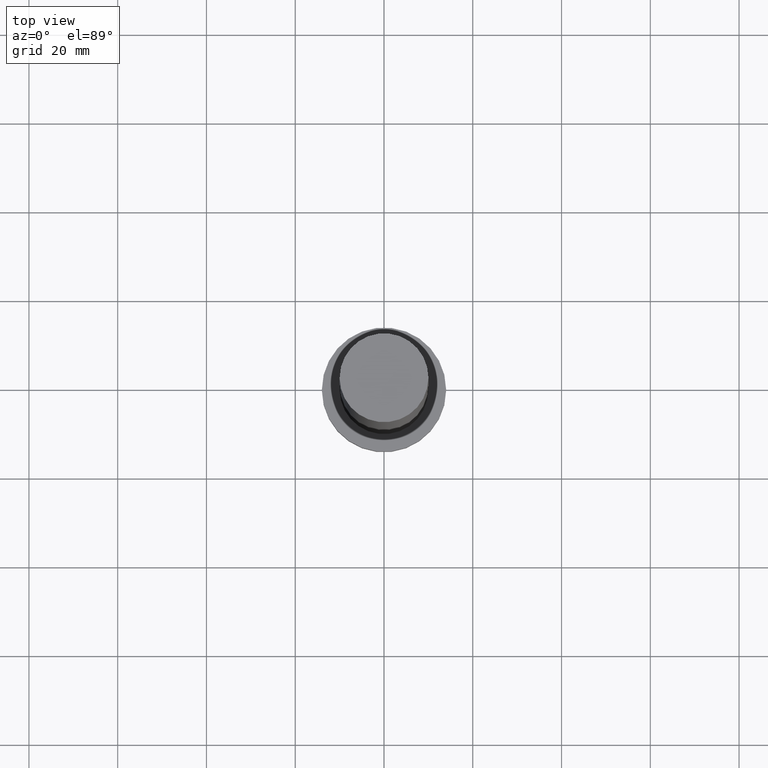
[diagram: clean part render]
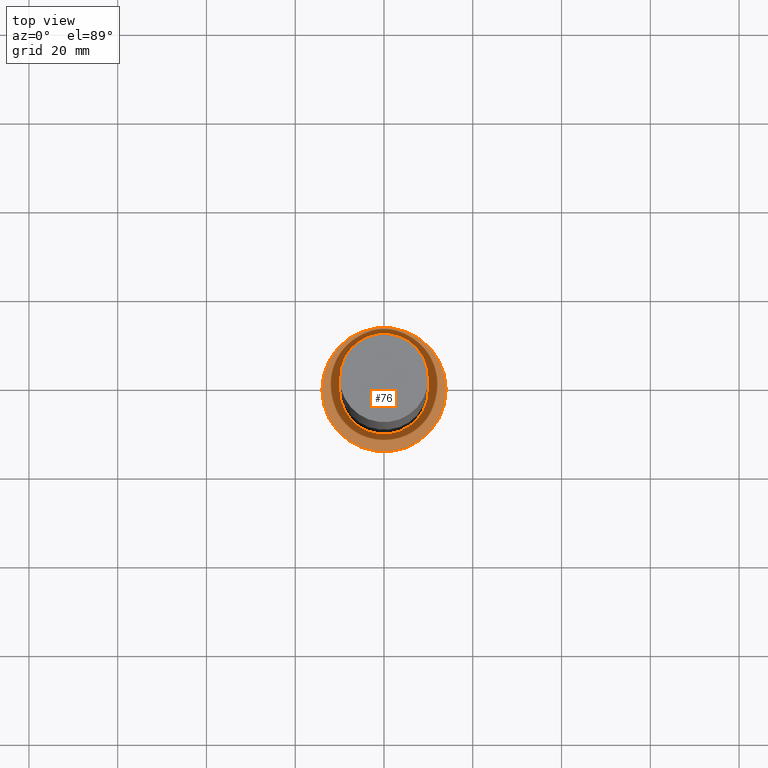
[diagram: same view with one face highlighted and labeled with its STEP entity id]
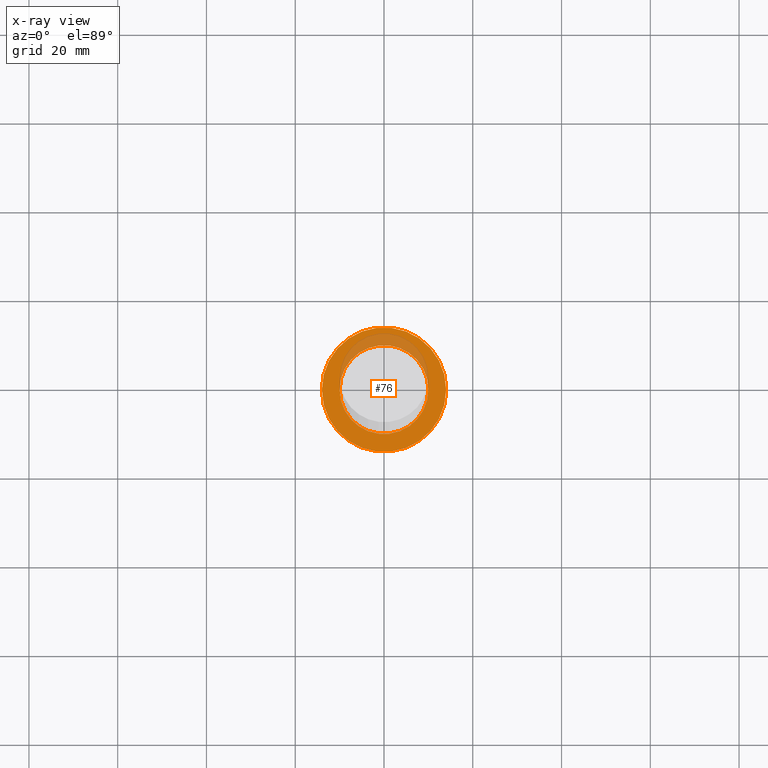
[diagram: x-ray of the same camera — body ghosted, the highlighted face saturated]
A machine part, top view. The second image highlights one B-rep face of the part: STEP entity #76.
The next image is the same camera in x-ray: the body ghosted, the highlighted face saturated — about 18% of this face is hidden behind the body in this view.
In plain terms, the highlighted planar face has unit normal (0, 0, 1).
Its self-contained STEP definition (entity closure, byte-faithful):
#1 = EDGE_CURVE ( 'NONE', #99, #119, #3, .T. ) ;
#3 = CIRCLE ( 'NONE', #13, 14.00000000000000000 ) ;
#5 = DIRECTION ( 'NONE',  ( 1.000000000000000000, 0.000000000000000000, 0.000000000000000000 ) ) ;
#6 = CARTESIAN_POINT ( 'NONE',  ( 0.000000000000000000, 0.000000000000000000, 7.000000000000000000 ) ) ;
#9 = DIRECTION ( 'NONE',  ( 0.000000000000000000, 0.000000000000000000, 1.000000000000000000 ) ) ;
#13 = AXIS2_PLACEMENT_3D ( 'NONE', #234, #127, #5 ) ;
#16 = ORIENTED_EDGE ( 'NONE', *, *, #143, .F. ) ;
#29 = FACE_BOUND ( 'NONE', #81, .T. ) ;
#31 = ORIENTED_EDGE ( 'NONE', *, *, #225, .F. ) ;
#42 = CIRCLE ( 'NONE', #158, 14.00000000000000000 ) ;
#51 = DIRECTION ( 'NONE',  ( 0.000000000000000000, 0.000000000000000000, 1.000000000000000000 ) ) ;
#71 = DIRECTION ( 'NONE',  ( 0.000000000000000000, 0.000000000000000000, 1.000000000000000000 ) ) ;
#76 = ADVANCED_FACE ( 'NONE', ( #29, #199 ), #167, .T. ) ;
#78 = CARTESIAN_POINT ( 'NONE',  ( -10.00000000000000000, 0.000000000000000000, 7.000000000000000000 ) ) ;
#81 = EDGE_LOOP ( 'NONE', ( #31, #16 ) ) ;
#83 = CARTESIAN_POINT ( 'NONE',  ( 0.000000000000000000, 0.000000000000000000, 7.000000000000000000 ) ) ;
#88 = CIRCLE ( 'NONE', #141, 10.00000000000000000 ) ;
#99 = VERTEX_POINT ( 'NONE', #109 ) ;
#100 = ORIENTED_EDGE ( 'NONE', *, *, #139, .T. ) ;
#106 = CIRCLE ( 'NONE', #203, 10.00000000000000000 ) ;
#109 = CARTESIAN_POINT ( 'NONE',  ( -14.00000000000000000, 0.000000000000000000, 7.000000000000000000 ) ) ;
#119 = VERTEX_POINT ( 'NONE', #220 ) ;
#122 = AXIS2_PLACEMENT_3D ( 'NONE', #204, #9, #168 ) ;
#127 = DIRECTION ( 'NONE',  ( 0.000000000000000000, 0.000000000000000000, 1.000000000000000000 ) ) ;
#136 = EDGE_LOOP ( 'NONE', ( #190, #100 ) ) ;
#139 = EDGE_CURVE ( 'NONE', #119, #99, #42, .T. ) ;
#141 = AXIS2_PLACEMENT_3D ( 'NONE', #83, #71, #148 ) ;
#143 = EDGE_CURVE ( 'NONE', #180, #212, #88, .T. ) ;
#148 = DIRECTION ( 'NONE',  ( 1.000000000000000000, 0.000000000000000000, 0.000000000000000000 ) ) ;
#158 = AXIS2_PLACEMENT_3D ( 'NONE', #6, #51, #238 ) ;
#164 = CARTESIAN_POINT ( 'NONE',  ( 10.00000000000000000, 1.224646799147353256E-15, 7.000000000000000000 ) ) ;
#167 = PLANE ( 'NONE',  #122 ) ;
#168 = DIRECTION ( 'NONE',  ( 1.000000000000000000, 0.000000000000000000, -0.000000000000000000 ) ) ;
#180 = VERTEX_POINT ( 'NONE', #164 ) ;
#190 = ORIENTED_EDGE ( 'NONE', *, *, #1, .T. ) ;
#199 = FACE_OUTER_BOUND ( 'NONE', #136, .T. ) ;
#203 = AXIS2_PLACEMENT_3D ( 'NONE', #226, #222, #246 ) ;
#204 = CARTESIAN_POINT ( 'NONE',  ( 0.000000000000000000, 0.000000000000000000, 7.000000000000000000 ) ) ;
#212 = VERTEX_POINT ( 'NONE', #78 ) ;
#220 = CARTESIAN_POINT ( 'NONE',  ( 14.00000000000000000, 1.714505518806294638E-15, 7.000000000000000000 ) ) ;
#222 = DIRECTION ( 'NONE',  ( 0.000000000000000000, 0.000000000000000000, 1.000000000000000000 ) ) ;
#225 = EDGE_CURVE ( 'NONE', #212, #180, #106, .T. ) ;
#226 = CARTESIAN_POINT ( 'NONE',  ( 0.000000000000000000, 0.000000000000000000, 7.000000000000000000 ) ) ;
#234 = CARTESIAN_POINT ( 'NONE',  ( 0.000000000000000000, 0.000000000000000000, 7.000000000000000000 ) ) ;
#238 = DIRECTION ( 'NONE',  ( 1.000000000000000000, 0.000000000000000000, 0.000000000000000000 ) ) ;
#246 = DIRECTION ( 'NONE',  ( 1.000000000000000000, 0.000000000000000000, 0.000000000000000000 ) ) ;